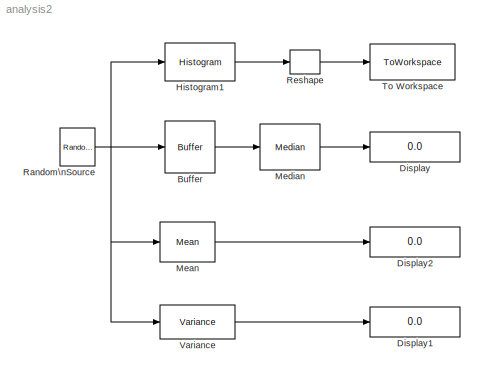
MODEL analysis2
KIND model
BLOCK [Buffer] Buffer
  OutputFrames = off
  SID = 2
BLOCK [Display] Display
  Decimation = 1
  Ports = [1]
  SID = 4
BLOCK [Display] Display1
  Decimation = 1
  Ports = [1]
  SID = 7
BLOCK [Display] Display2
  Decimation = 1
  Ports = [1]
  SID = 8
BLOCK [Reference] Histogram1  REF=dspstat3/Histogram
  Dimension = 1
  LockScale = off
  Ports = [1, 1]
  SID = 12
  SourceBlock = dspstat3/Histogram
  SourceProductBaseCode = DS
  SourceProductName = DSP System Toolbox
  SourceType = Histogram
  UserData = DataTag0
  UserDataPersistent = on
  accumDataTypeStr = Inherit: Same as input
  accumFracLength = 30
  accumLastDataTypeStr = Inherit: Same as input
  accumMode = Same as input
  accumWordLength = 32
  additionalParams = off
  allowOverrides = on
  colComp = on
  nbins = 11
  normalized = off
  operateOver = Each column
  overflowMode = off
  prodOutputDataTypeStr = Inherit: Same as input
  prodOutputFracLength = 30
  prodOutputLastDataTypeStr = Inherit: Same as input
  prodOutputMode = Same as input
  prodOutputWordLength = 32
  reset = on
  roundingMode = Floor
  run = off
  trigtype = Non-zero sample
  umax = 10
  umin = -10
BLOCK [Reference] Mean  REF=dspstat3/Mean
  InputProcessing = Columns as channels (frame based)
  LockScale = off
  Ports = [1, 1]
  SID = 5
  SourceBlock = dspstat3/Mean
  SourceProductBaseCode = DS
  SourceProductName = DSP System Toolbox
  SourceType = Mean
  UserData = DataTag1
  UserDataPersistent = on
  accumDataTypeStr = Inherit: Same as input
  accumFracLength = 30
  accumLastDataTypeStr = Inherit: Same as input
  accumMode = Same as input
  accumWordLength = 32
  additionalParams = off
  allowOverrides = on
  dimension = 1
  directionMode = Each column
  outputDataTypeStr = Inherit: Same as accumulator
  outputFracLength = 30
  outputLastDataTypeStr = Inherit: Same as accumulator
  outputMax = []
  outputMin = []
  outputMode = Same as accumulator
  outputWordLength = 32
  overflowMode = off
  reset_popup = None
  roiEnable = off
  roiFlag = off
  roiOutput = Individual statistics for each ROI
  roiPortion = Entire ROI
  roiType = Rectangles
  roundingMode = Floor
  run = on
BLOCK [Reference] Median  REF=dspstat3/Median
  LockScale = off
  Ports = [1, 1]
  SID = 3
  SourceBlock = dspstat3/Median
  SourceProductBaseCode = DS
  SourceProductName = DSP System Toolbox
  SourceType = Median
  accumDataTypeStr = Inherit: Same as product output
  accumFracLength = 30
  accumLastDataTypeStr = Inherit: Same as product output
  accumMode = Same as product output
  accumWordLength = 32
  additionalParams = off
  allowOverrides = off
  dimension = 1
  directionMode = Each column
  outputDataTypeStr = Inherit: Same as accumulator
  outputFracLength = 15
  outputLastDataTypeStr = Inherit: Same as accumulator
  outputMax = []
  outputMin = []
  outputMode = Same as accumulator
  outputWordLength = 16
  overflowMode = off
  prodOutputDataTypeStr = Inherit: Same as input
  prodOutputFracLength = 30
  prodOutputLastDataTypeStr = Inherit: Same as input
  prodOutputMode = Same as input
  prodOutputWordLength = 32
  roundingMode = Floor
  sortAlg = Quick sort
BLOCK [Reference] Random\nSource  REF=dspsrcs4/Random\nSource
  CltLength = 12
  DataType = Double
  IsInherit = off
  MaxVal = 1
  MeanVal = 2
  MinVal = 0
  NormMethod = Ziggurat
  OutComplex = Real
  OutputFrames = off
  Ports = [0, 1]
  RepMode = Not repeatable
  SID = 1
  SampFrame = 1
  SampMode = Discrete
  SampTime = 0.001
  SourceBlock = dspsrcs4/Random\nSource
  SourceProductBaseCode = DS
  SourceProductName = DSP System Toolbox
  SourceType = Random Source
  SrcType = Gaussian
  UserData = DataTag2
  UserDataPersistent = on
  VarVal = 3
  rawSeed = 1
BLOCK [Reshape] Reshape
  Ports = [1, 1]
  SID = 10
BLOCK [ToWorkspace] To Workspace
  FixptAsFi = on
  MaxDataPoints = 1
  Ports = [1]
  SID = 11
  SampleTime = -1
  Save2DSignal = 3-D array (concatenate along third dimension)
  SaveFormat = Timeseries
  VariableName = histdata
BLOCK [Reference] Variance  REF=dspstat3/Variance
  InputProcessing = Columns as channels (frame based)
  LockScale = off
  Ports = [1, 1]
  SID = 6
  SourceBlock = dspstat3/Variance
  SourceProductBaseCode = DS
  SourceProductName = DSP System Toolbox
  SourceType = Variance
  UserData = DataTag3
  UserDataPersistent = on
  accumFracLength = 30
  accumMode = Same as input-squared product
  accumWordLength = 32
  additionalParams = off
  allowOverrides = on
  dimension = 1
  directionMode = Each column
  memoryFracLength = 30
  memoryMode = Same as input-squared product
  memoryWordLength = 32
  outputFracLength = 30
  outputMode = Same as input-squared product
  outputWordLength = 32
  overflowMode = off
  prodOutputFracLength = 30
  prodOutputMode = Same as input
  prodOutputWordLength = 32
  reset_popup = None
  roiEnable = off
  roiFlag = off
  roiOutput = Individual statistics for each ROI
  roiPortion = Entire ROI
  roiType = Rectangles
  roundingMode = Floor
  run = on
LINE Buffer:1 -> Median:1
LINE Histogram1:1 -> Reshape:1
LINE Mean:1 -> Display2:1
LINE Median:1 -> Display:1
NET Random\nSource:1 -> Buffer:1, Histogram1:1, Mean:1, Variance:1
LINE Reshape:1 -> To Workspace:1
LINE Variance:1 -> Display1:1
note: NET lines group one-source signal fan-out (src -> all destinations, sorted); 1:1 wires keep LINE
